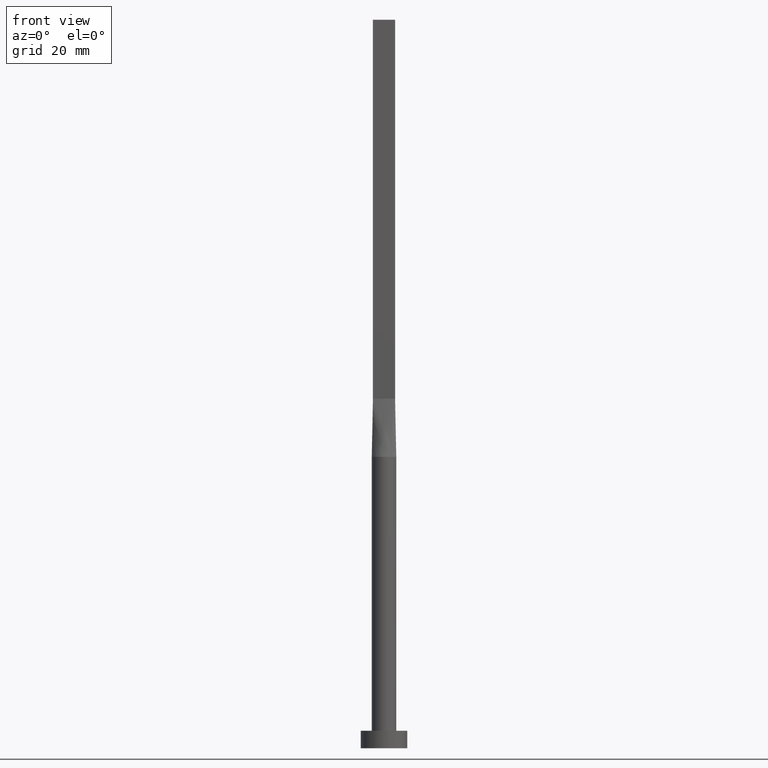
[diagram: clean part render]
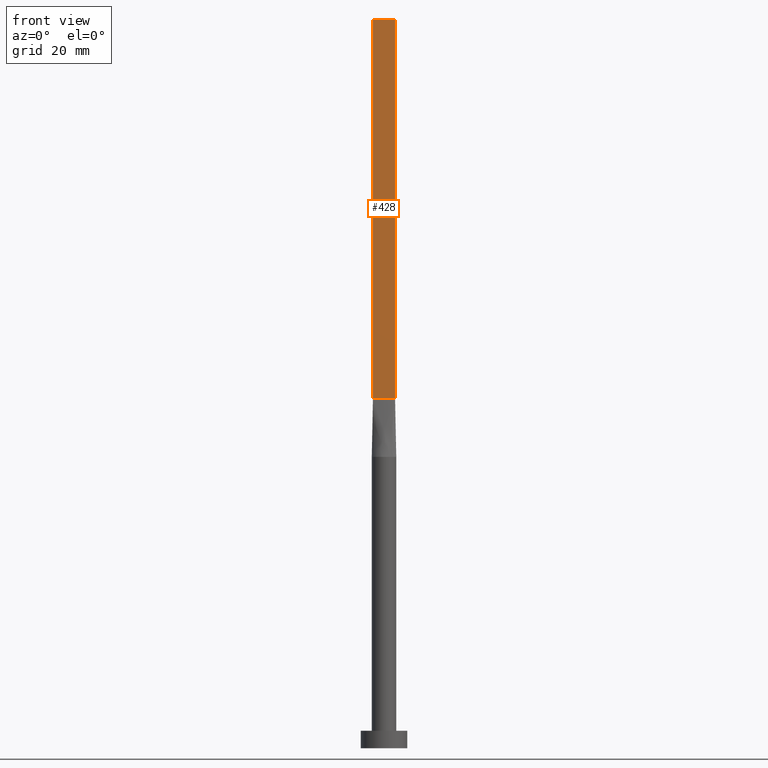
[diagram: same view with one face highlighted and labeled with its STEP entity id]
A machine part, front view. The second image highlights one B-rep face of the part: STEP entity #428.
In plain terms, the highlighted planar face has unit normal (0, 1, -0).
Its self-contained STEP definition (entity closure, byte-faithful):
#28 = EDGE_CURVE ( 'NONE', #522, #93, #44, .T. ) ;
#35 = CARTESIAN_POINT ( 'NONE',  ( 1.899999999999999023, -0.3999999999999998002, 125.0000000000000000 ) ) ;
#44 = LINE ( 'NONE', #402, #556 ) ;
#55 = VECTOR ( 'NONE', #476, 1000.000000000000000 ) ;
#80 = CARTESIAN_POINT ( 'NONE',  ( -1.899999999999999911, -0.3999999999999995781, 125.0000000000000000 ) ) ;
#93 = VERTEX_POINT ( 'NONE', #406 ) ;
#115 = VERTEX_POINT ( 'NONE', #422 ) ;
#123 = ORIENTED_EDGE ( 'NONE', *, *, #292, .T. ) ;
#158 = EDGE_CURVE ( 'NONE', #429, #115, #191, .T. ) ;
#188 = CARTESIAN_POINT ( 'NONE',  ( -1.899999999999999911, -0.3999999999999995781, 125.0000000000000000 ) ) ;
#191 = LINE ( 'NONE', #235, #328 ) ;
#199 = AXIS2_PLACEMENT_3D ( 'NONE', #80, #393, #260 ) ;
#218 = ORIENTED_EDGE ( 'NONE', *, *, #158, .F. ) ;
#229 = DIRECTION ( 'NONE',  ( 1.000000000000000000, -5.706327223607920020E-17, 0.000000000000000000 ) ) ;
#235 = CARTESIAN_POINT ( 'NONE',  ( 1.899999999999999023, -0.3999999999999998002, 125.0000000000000000 ) ) ;
#260 = DIRECTION ( 'NONE',  ( -1.000000000000000000, 5.706327223607920020E-17, 0.000000000000000000 ) ) ;
#292 = EDGE_CURVE ( 'NONE', #93, #115, #458, .T. ) ;
#294 = CARTESIAN_POINT ( 'NONE',  ( -1.899999999999999911, -0.3999999999999995781, 60.00000000000000711 ) ) ;
#321 = PLANE ( 'NONE',  #199 ) ;
#328 = VECTOR ( 'NONE', #547, 1000.000000000000000 ) ;
#329 = VECTOR ( 'NONE', #229, 1000.000000000000000 ) ;
#344 = ORIENTED_EDGE ( 'NONE', *, *, #461, .F. ) ;
#389 = CARTESIAN_POINT ( 'NONE',  ( -1.899999999999999911, -0.3999999999999995781, 125.0000000000000000 ) ) ;
#393 = DIRECTION ( 'NONE',  ( 5.706327223607920020E-17, 1.000000000000000000, -0.000000000000000000 ) ) ;
#402 = CARTESIAN_POINT ( 'NONE',  ( -1.899999999999999911, -0.3999999999999995781, 125.0000000000000000 ) ) ;
#406 = CARTESIAN_POINT ( 'NONE',  ( -1.899999999999999911, -0.3999999999999995781, 60.00000000000000711 ) ) ;
#422 = CARTESIAN_POINT ( 'NONE',  ( 1.899999999999999023, -0.3999999999999998002, 60.00000000000000711 ) ) ;
#428 = ADVANCED_FACE ( 'NONE', ( #545 ), #321, .F. ) ;
#429 = VERTEX_POINT ( 'NONE', #35 ) ;
#434 = EDGE_LOOP ( 'NONE', ( #123, #218, #344, #560 ) ) ;
#448 = DIRECTION ( 'NONE',  ( -0.000000000000000000, -0.000000000000000000, -1.000000000000000000 ) ) ;
#457 = LINE ( 'NONE', #188, #329 ) ;
#458 = LINE ( 'NONE', #294, #55 ) ;
#461 = EDGE_CURVE ( 'NONE', #522, #429, #457, .T. ) ;
#476 = DIRECTION ( 'NONE',  ( 1.000000000000000000, -5.706327223607918787E-17, 0.000000000000000000 ) ) ;
#522 = VERTEX_POINT ( 'NONE', #389 ) ;
#545 = FACE_OUTER_BOUND ( 'NONE', #434, .T. ) ;
#547 = DIRECTION ( 'NONE',  ( -0.000000000000000000, -0.000000000000000000, -1.000000000000000000 ) ) ;
#556 = VECTOR ( 'NONE', #448, 1000.000000000000000 ) ;
#560 = ORIENTED_EDGE ( 'NONE', *, *, #28, .T. ) ;